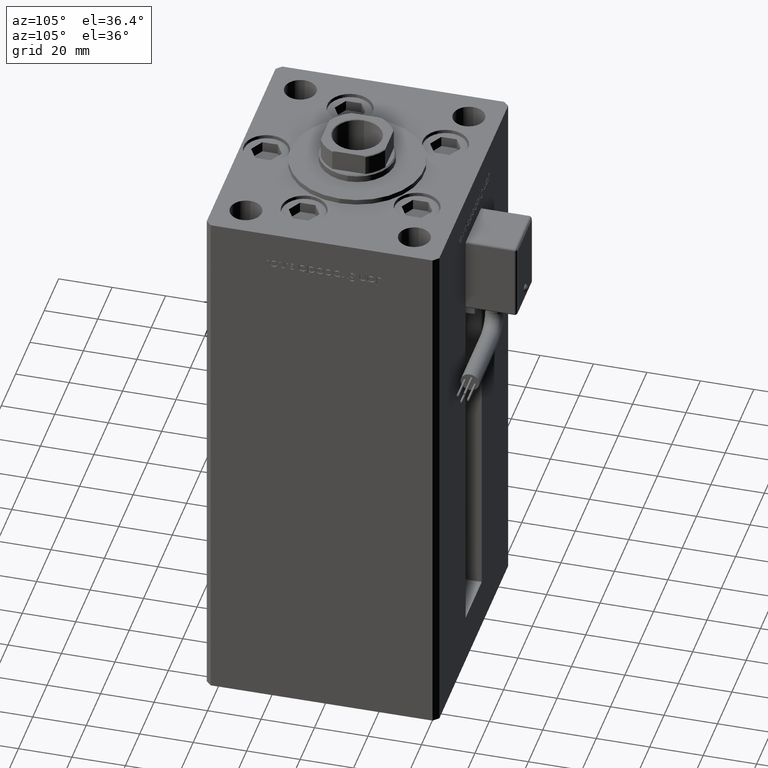
[diagram: clean part render]
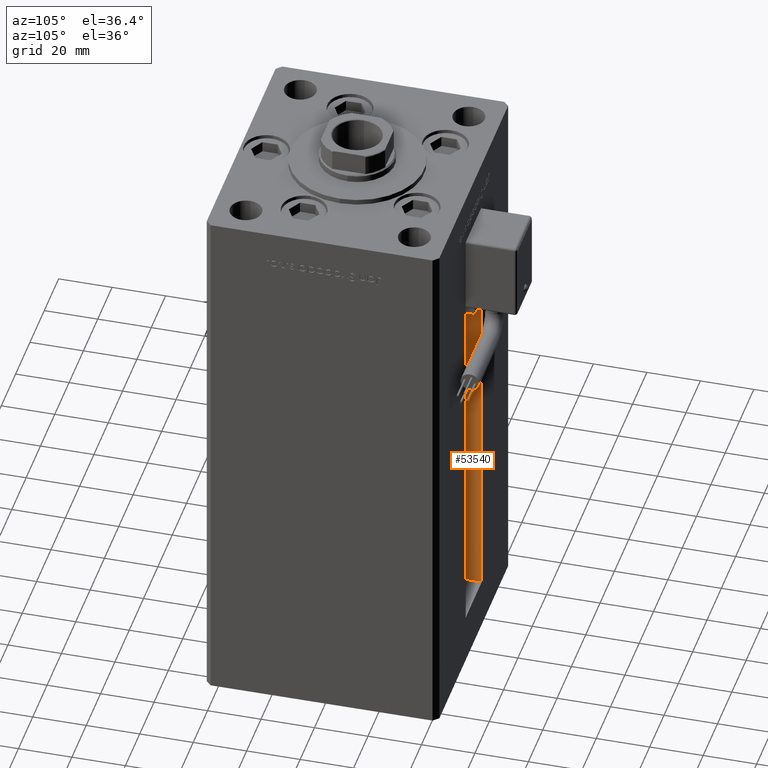
[diagram: same view with one face highlighted and labeled with its STEP entity id]
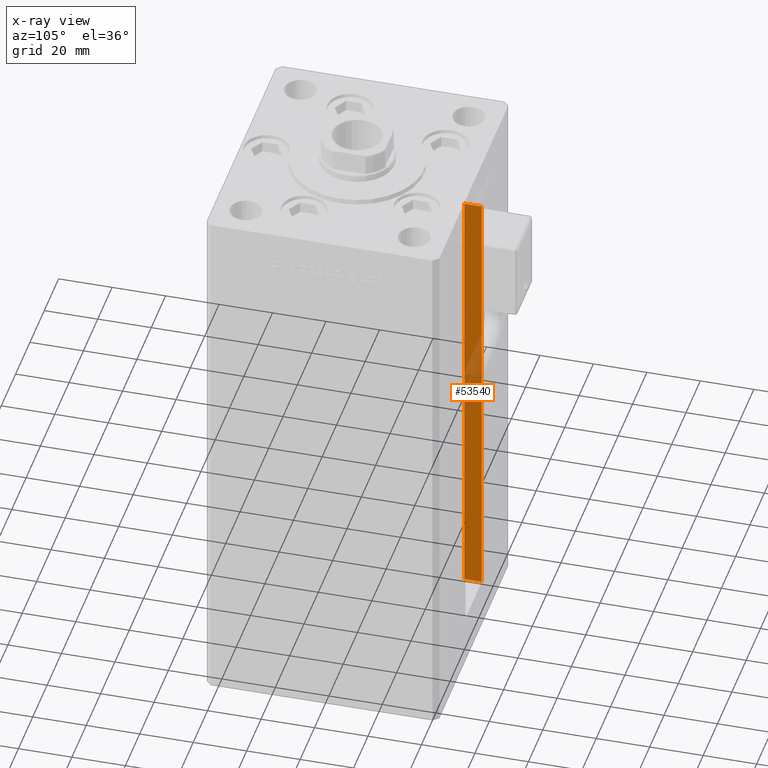
[diagram: x-ray of the same camera — body ghosted, the highlighted face saturated]
A machine part, auxiliary view. The second image highlights one B-rep face of the part: STEP entity #53540.
The next image is the same camera in x-ray: the body ghosted, the highlighted face saturated — about 15% of this face is hidden behind the body in this view.
In plain terms, the highlighted planar face has unit normal (-1, 0, 0).
Its self-contained STEP definition (entity closure, byte-faithful):
#767 = EDGE_CURVE ( 'NONE', #28270, #25895, #28563, .T. ) ;
#1092 = CARTESIAN_POINT ( 'NONE',  ( -11.24999999999999822, 43.50000000000000000, 168.5000000000000000 ) ) ;
#2227 = FACE_OUTER_BOUND ( 'NONE', #7347, .T. ) ;
#4155 = EDGE_CURVE ( 'NONE', #25895, #52410, #29571, .T. ) ;
#4804 = VECTOR ( 'NONE', #34122, 1000.000000000000000 ) ;
#5609 = CARTESIAN_POINT ( 'NONE',  ( -11.24999999999999822, 36.99999999999999289, 0.000000000000000000 ) ) ;
#7347 = EDGE_LOOP ( 'NONE', ( #12620, #10362, #26056, #30845 ) ) ;
#10362 = ORIENTED_EDGE ( 'NONE', *, *, #767, .F. ) ;
#11034 = CARTESIAN_POINT ( 'NONE',  ( -11.24999999999999822, 36.99999999999999289, 0.000000000000000000 ) ) ;
#11859 = LINE ( 'NONE', #24417, #26116 ) ;
#12620 = ORIENTED_EDGE ( 'NONE', *, *, #4155, .F. ) ;
#15285 = VECTOR ( 'NONE', #39291, 1000.000000000000000 ) ;
#17112 = CARTESIAN_POINT ( 'NONE',  ( -11.24999999999999822, 0.000000000000000000, 168.5000000000000000 ) ) ;
#17564 = CARTESIAN_POINT ( 'NONE',  ( -11.24999999999999822, 36.99999999999999289, 0.000000000000000000 ) ) ;
#21300 = LINE ( 'NONE', #17112, #4804 ) ;
#22451 = VERTEX_POINT ( 'NONE', #1092 ) ;
#24417 = CARTESIAN_POINT ( 'NONE',  ( -11.24999999999999822, 43.50000000000000000, 0.000000000000000000 ) ) ;
#25194 = CARTESIAN_POINT ( 'NONE',  ( -11.24999999999999822, 36.99999999999999289, 0.000000000000000000 ) ) ;
#25895 = VERTEX_POINT ( 'NONE', #11034 ) ;
#25912 = EDGE_CURVE ( 'NONE', #28270, #22451, #11859, .T. ) ;
#26056 = ORIENTED_EDGE ( 'NONE', *, *, #25912, .T. ) ;
#26116 = VECTOR ( 'NONE', #40848, 1000.000000000000000 ) ;
#28270 = VERTEX_POINT ( 'NONE', #45961 ) ;
#28563 = LINE ( 'NONE', #25194, #53389 ) ;
#29330 = EDGE_CURVE ( 'NONE', #52410, #22451, #21300, .T. ) ;
#29571 = LINE ( 'NONE', #17564, #15285 ) ;
#29613 = CARTESIAN_POINT ( 'NONE',  ( -11.24999999999999822, 36.99999999999999289, 168.5000000000000000 ) ) ;
#30845 = ORIENTED_EDGE ( 'NONE', *, *, #29330, .F. ) ;
#34122 = DIRECTION ( 'NONE',  ( 0.000000000000000000, 1.000000000000000000, 0.000000000000000000 ) ) ;
#36261 = PLANE ( 'NONE',  #48013 ) ;
#39291 = DIRECTION ( 'NONE',  ( -0.000000000000000000, -0.000000000000000000, 1.000000000000000000 ) ) ;
#40848 = DIRECTION ( 'NONE',  ( -0.000000000000000000, -0.000000000000000000, 1.000000000000000000 ) ) ;
#45961 = CARTESIAN_POINT ( 'NONE',  ( -11.24999999999999822, 43.50000000000000000, 0.000000000000000000 ) ) ;
#46388 = DIRECTION ( 'NONE',  ( -0.000000000000000000, -1.000000000000000000, -0.000000000000000000 ) ) ;
#48013 = AXIS2_PLACEMENT_3D ( 'NONE', #5609, #53256, #49090 ) ;
#49090 = DIRECTION ( 'NONE',  ( 0.000000000000000000, 0.000000000000000000, 1.000000000000000000 ) ) ;
#52410 = VERTEX_POINT ( 'NONE', #29613 ) ;
#53256 = DIRECTION ( 'NONE',  ( -1.000000000000000000, 0.000000000000000000, 0.000000000000000000 ) ) ;
#53389 = VECTOR ( 'NONE', #46388, 1000.000000000000000 ) ;
#53540 = ADVANCED_FACE ( 'NONE', ( #2227 ), #36261, .F. ) ;